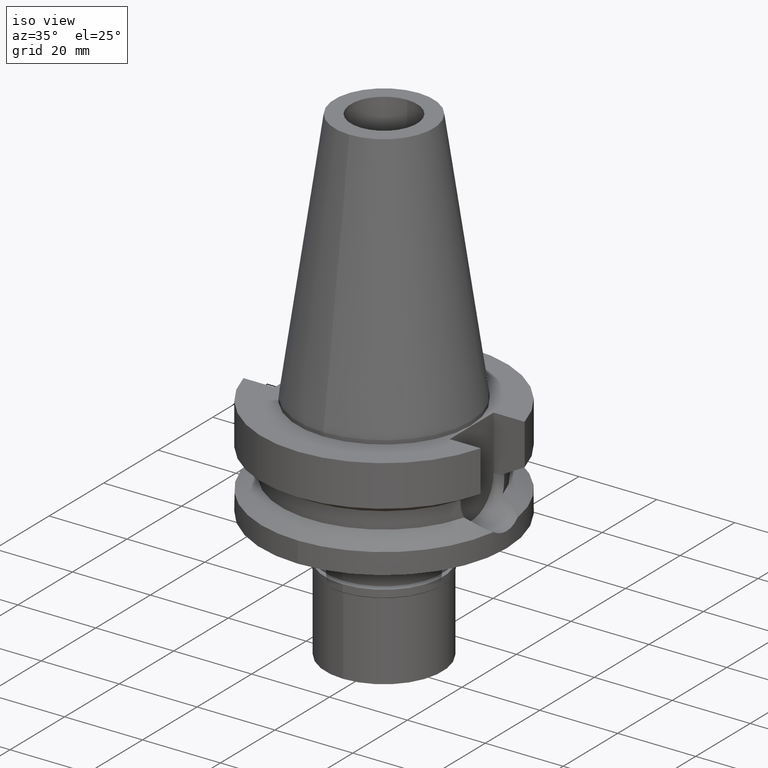
[diagram: clean part render]
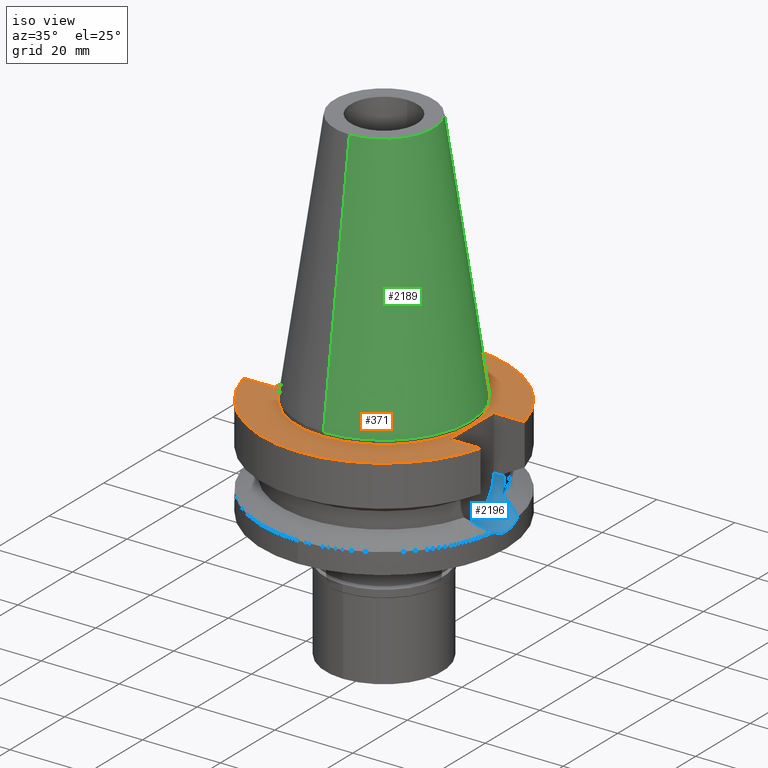
[diagram: same view with three faces highlighted in distinct colors, each labeled with its STEP entity id]
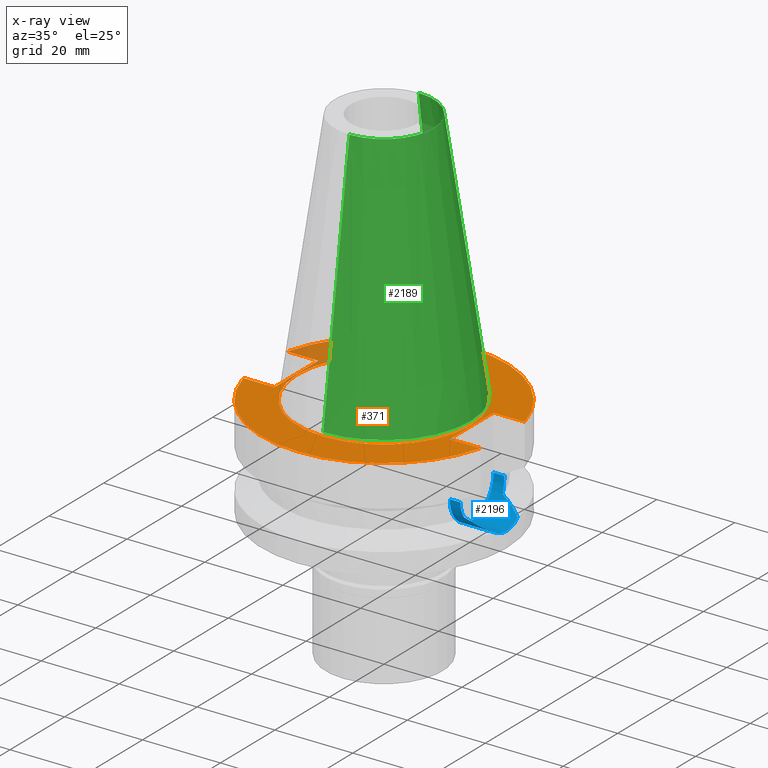
[diagram: x-ray of the same camera — body ghosted, the three highlighted faces saturated]
A machine part, iso view with three faces highlighted in distinct colors.
The next image is the same camera in x-ray (body ghosted, the three faces saturated) — at least one of them is partly hidden behind the body in this view.
Their STEP definitions:

[orange] entity #371 — the highlighted planar face has unit normal (0, 0, -1).
#106 = CIRCLE ( 'NONE', #2302, 22.22500000000000142 ) ;
#173 = CARTESIAN_POINT ( 'NONE',  ( 0.0000000000000000000, 2.098248593318999714E-14, -1.000000000000000000 ) ) ;
#199 = DIRECTION ( 'NONE',  ( 0.0000000000000000000, 0.0000000000000000000, -1.000000000000000000 ) ) ;
#203 = CARTESIAN_POINT ( 'NONE',  ( 22.50000000000000000, 8.050000000000000711, -1.000000000000000000 ) ) ;
#235 = CARTESIAN_POINT ( 'NONE',  ( -22.50000000000000000, -8.050000000000000711, -1.000000000000000000 ) ) ;
#239 = VERTEX_POINT ( 'NONE', #1117 ) ;
#254 = VECTOR ( 'NONE', #2682, 1000.000000000000000 ) ;
#255 = CIRCLE ( 'NONE', #1535, 31.50000000000000000 ) ;
#348 = ORIENTED_EDGE ( 'NONE', *, *, #2637, .T. ) ;
#371 = ADVANCED_FACE ( 'NONE', ( #2832, #2631 ), #493, .F. ) ;
#449 = CARTESIAN_POINT ( 'NONE',  ( -22.50000000000000000, 8.050000000000000711, -1.000000000000000000 ) ) ;
#479 = LINE ( 'NONE', #1626, #3044 ) ;
#493 = PLANE ( 'NONE',  #1995 ) ;
#527 = EDGE_CURVE ( 'NONE', #2763, #2972, #255, .T. ) ;
#543 = CARTESIAN_POINT ( 'NONE',  ( -30.45402272279000044, -8.050000000000000711, -1.000000000000000000 ) ) ;
#606 = ORIENTED_EDGE ( 'NONE', *, *, #2249, .F. ) ;
#621 = EDGE_CURVE ( 'NONE', #745, #2010, #106, .T. ) ;
#647 = CARTESIAN_POINT ( 'NONE',  ( -22.50000000000000000, -8.050000000000000711, -1.000000000000000000 ) ) ;
#669 = DIRECTION ( 'NONE',  ( 1.000000000000000000, -3.506251283225999947E-14, 0.0000000000000000000 ) ) ;
#706 = ORIENTED_EDGE ( 'NONE', *, *, #1483, .F. ) ;
#745 = VERTEX_POINT ( 'NONE', #2022 ) ;
#765 = LINE ( 'NONE', #1720, #254 ) ;
#766 = EDGE_LOOP ( 'NONE', ( #3021, #2660, #2078, #1828, #348, #706, #606, #2191 ) ) ;
#782 = ORIENTED_EDGE ( 'NONE', *, *, #1931, .F. ) ;
#784 = EDGE_CURVE ( 'NONE', #1574, #2763, #479, .T. ) ;
#864 = VERTEX_POINT ( 'NONE', #449 ) ;
#900 = CARTESIAN_POINT ( 'NONE',  ( 22.50000000000000000, 8.050000000000000711, -1.000000000000000000 ) ) ;
#953 = CARTESIAN_POINT ( 'NONE',  ( 0.0000000000000000000, 22.22500000000000142, -1.000000000000000000 ) ) ;
#1023 = CARTESIAN_POINT ( 'NONE',  ( 22.50000000000000000, -8.050000000000000711, -1.000000000000000000 ) ) ;
#1034 = CARTESIAN_POINT ( 'NONE',  ( -30.45402272279000044, 8.050000000000000711, -1.000000000000000000 ) ) ;
#1050 = VECTOR ( 'NONE', #2663, 1000.000000000000000 ) ;
#1084 = EDGE_CURVE ( 'NONE', #1419, #1574, #1701, .T. ) ;
#1088 = DIRECTION ( 'NONE',  ( 0.0000000000000000000, -1.000000000000000000, 0.0000000000000000000 ) ) ;
#1117 = CARTESIAN_POINT ( 'NONE',  ( 30.45402272279000044, 8.050000000000000711, -1.000000000000000000 ) ) ;
#1211 = DIRECTION ( 'NONE',  ( 0.0000000000000000000, 1.000000000000000000, 0.0000000000000000000 ) ) ;
#1369 = EDGE_CURVE ( 'NONE', #1371, #864, #1849, .T. ) ;
#1371 = VERTEX_POINT ( 'NONE', #1892 ) ;
#1419 = VERTEX_POINT ( 'NONE', #203 ) ;
#1421 = DIRECTION ( 'NONE',  ( 0.0000000000000000000, 1.000000000000000000, 0.0000000000000000000 ) ) ;
#1470 = CARTESIAN_POINT ( 'NONE',  ( 0.0000000000000000000, 2.098248593318999714E-14, -1.000000000000000000 ) ) ;
#1481 = DIRECTION ( 'NONE',  ( 0.0000000000000000000, 0.0000000000000000000, 1.000000000000000000 ) ) ;
#1483 = EDGE_CURVE ( 'NONE', #1666, #239, #1853, .T. ) ;
#1535 = AXIS2_PLACEMENT_3D ( 'NONE', #1470, #2892, #2935 ) ;
#1574 = VERTEX_POINT ( 'NONE', #1023 ) ;
#1626 = CARTESIAN_POINT ( 'NONE',  ( 22.50000000000000000, -8.050000000000000711, -1.000000000000000000 ) ) ;
#1646 = EDGE_LOOP ( 'NONE', ( #782, #2040 ) ) ;
#1666 = VERTEX_POINT ( 'NONE', #1034 ) ;
#1701 = LINE ( 'NONE', #2905, #1050 ) ;
#1710 = DIRECTION ( 'NONE',  ( -1.000000000000000000, 3.550916904668000126E-14, 0.0000000000000000000 ) ) ;
#1720 = CARTESIAN_POINT ( 'NONE',  ( -22.50000000000000000, 8.050000000000000711, -1.000000000000000000 ) ) ;
#1828 = ORIENTED_EDGE ( 'NONE', *, *, #1084, .F. ) ;
#1849 = LINE ( 'NONE', #647, #2799 ) ;
#1853 = CIRCLE ( 'NONE', #2403, 31.50000000000000000 ) ;
#1859 = DIRECTION ( 'NONE',  ( 0.0000000000000000000, -1.000000000000000000, 0.0000000000000000000 ) ) ;
#1892 = CARTESIAN_POINT ( 'NONE',  ( -22.50000000000000000, -8.050000000000000711, -1.000000000000000000 ) ) ;
#1931 = EDGE_CURVE ( 'NONE', #2010, #745, #2159, .T. ) ;
#1956 = DIRECTION ( 'NONE',  ( 0.0000000000000000000, 0.0000000000000000000, -1.000000000000000000 ) ) ;
#1995 = AXIS2_PLACEMENT_3D ( 'NONE', #2338, #199, #1859 ) ;
#2010 = VERTEX_POINT ( 'NONE', #953 ) ;
#2022 = CARTESIAN_POINT ( 'NONE',  ( 0.0000000000000000000, -22.22500000000000142, -1.000000000000000000 ) ) ;
#2040 = ORIENTED_EDGE ( 'NONE', *, *, #621, .F. ) ;
#2078 = ORIENTED_EDGE ( 'NONE', *, *, #784, .F. ) ;
#2139 = DIRECTION ( 'NONE',  ( 0.0000000000000000000, 1.000000000000000000, 0.0000000000000000000 ) ) ;
#2159 = CIRCLE ( 'NONE', #2553, 22.22500000000000142 ) ;
#2191 = ORIENTED_EDGE ( 'NONE', *, *, #1369, .F. ) ;
#2197 = VECTOR ( 'NONE', #1710, 1000.000000000000000 ) ;
#2249 = EDGE_CURVE ( 'NONE', #864, #1666, #765, .T. ) ;
#2302 = AXIS2_PLACEMENT_3D ( 'NONE', #2680, #1481, #1088 ) ;
#2338 = CARTESIAN_POINT ( 'NONE',  ( 0.0000000000000000000, 1.212400331155999925E-14, -1.000000000000000000 ) ) ;
#2376 = DIRECTION ( 'NONE',  ( 0.0000000000000000000, 0.0000000000000000000, 1.000000000000000000 ) ) ;
#2394 = CARTESIAN_POINT ( 'NONE',  ( 0.0000000000000000000, 2.098248593318999714E-14, -1.000000000000000000 ) ) ;
#2403 = AXIS2_PLACEMENT_3D ( 'NONE', #2394, #1956, #1211 ) ;
#2553 = AXIS2_PLACEMENT_3D ( 'NONE', #173, #2376, #2139 ) ;
#2565 = LINE ( 'NONE', #900, #3043 ) ;
#2623 = CARTESIAN_POINT ( 'NONE',  ( 30.45402272279000044, -8.050000000000000711, -1.000000000000000000 ) ) ;
#2631 = FACE_BOUND ( 'NONE', #1646, .T. ) ;
#2637 = EDGE_CURVE ( 'NONE', #1419, #239, #2565, .T. ) ;
#2660 = ORIENTED_EDGE ( 'NONE', *, *, #527, .F. ) ;
#2663 = DIRECTION ( 'NONE',  ( 0.0000000000000000000, -1.000000000000000000, 0.0000000000000000000 ) ) ;
#2680 = CARTESIAN_POINT ( 'NONE',  ( 0.0000000000000000000, 2.098248593318999714E-14, -1.000000000000000000 ) ) ;
#2682 = DIRECTION ( 'NONE',  ( -1.000000000000000000, -3.550916904668000126E-14, 0.0000000000000000000 ) ) ;
#2763 = VERTEX_POINT ( 'NONE', #2623 ) ;
#2777 = EDGE_CURVE ( 'NONE', #1371, #2972, #2899, .T. ) ;
#2785 = DIRECTION ( 'NONE',  ( 1.000000000000000000, 3.573249715389999860E-14, 0.0000000000000000000 ) ) ;
#2799 = VECTOR ( 'NONE', #1421, 1000.000000000000000 ) ;
#2832 = FACE_OUTER_BOUND ( 'NONE', #766, .T. ) ;
#2892 = DIRECTION ( 'NONE',  ( 0.0000000000000000000, 0.0000000000000000000, -1.000000000000000000 ) ) ;
#2899 = LINE ( 'NONE', #235, #2197 ) ;
#2905 = CARTESIAN_POINT ( 'NONE',  ( 22.50000000000000000, 8.050000000000000711, -1.000000000000000000 ) ) ;
#2935 = DIRECTION ( 'NONE',  ( 0.0000000000000000000, -1.000000000000000000, 0.0000000000000000000 ) ) ;
#2972 = VERTEX_POINT ( 'NONE', #543 ) ;
#3021 = ORIENTED_EDGE ( 'NONE', *, *, #2777, .T. ) ;
#3043 = VECTOR ( 'NONE', #669, 1000.000000000000000 ) ;
#3044 = VECTOR ( 'NONE', #2785, 1000.000000000000000 ) ;

[blue] entity #2196 — the highlighted cylindrical surface (partial cylindrical patch) has radius 8.05 mm, axis along (1, 0, 0).
#3 = CARTESIAN_POINT ( 'NONE',  ( 31.42566608920675009, 2.161912855910136599, -22.70455434715237786 ) ) ;
#23 = AXIS2_PLACEMENT_3D ( 'NONE', #2183, #68, #2706 ) ;
#44 = CARTESIAN_POINT ( 'NONE',  ( 25.24772266958000344, -8.050000000000000711, -14.94999999999999929 ) ) ;
#47 = CARTESIAN_POINT ( 'NONE',  ( 26.17362010216924872, -6.921423633064286207, -19.07750117106188625 ) ) ;
#68 = DIRECTION ( 'NONE',  ( 1.000000000000000000, 0.0000000000000000000, 0.0000000000000000000 ) ) ;
#114 = ORIENTED_EDGE ( 'NONE', *, *, #1655, .F. ) ;
#128 = CARTESIAN_POINT ( 'NONE',  ( 27.92404568082185179, 6.323456278402608710, -19.97420482294344168 ) ) ;
#148 = CARTESIAN_POINT ( 'NONE',  ( 31.27812972761145360, -3.746556030148608496, -22.08615384555778505 ) ) ;
#152 = CARTESIAN_POINT ( 'NONE',  ( 25.24772266958000344, -8.050000000000000711, -14.94999999999999929 ) ) ;
#157 = CARTESIAN_POINT ( 'NONE',  ( 28.88662173957530399, 5.863387539855740016, -20.46575949448729759 ) ) ;
#183 = CARTESIAN_POINT ( 'NONE',  ( 31.33673721239597398, -3.204096010012915663, -22.33755624054715838 ) ) ;
#188 = CARTESIAN_POINT ( 'NONE',  ( 25.32119310062651252, -7.816055872883342914, -16.87669021871291264 ) ) ;
#195 = CARTESIAN_POINT ( 'NONE',  ( 31.50000000000000000, -0.7651554269413264331, -23.00000000000000355 ) ) ;
#238 = CARTESIAN_POINT ( 'NONE',  ( 31.43710641057978350, 1.991379779744103296, -22.75094280097368227 ) ) ;
#264 = CARTESIAN_POINT ( 'NONE',  ( 27.86935078598209259, -6.314241967438078085, -19.94614511782477706 ) ) ;
#281 = CYLINDRICAL_SURFACE ( 'NONE', #23, 8.050000000000000711 ) ;
#333 = CARTESIAN_POINT ( 'NONE',  ( 25.24772266958000344, -8.050000000000000711, -14.94999999999999929 ) ) ;
#355 = AXIS2_PLACEMENT_3D ( 'NONE', #2225, #2978, #2254 ) ;
#377 = CARTESIAN_POINT ( 'NONE',  ( 31.35452407078453163, -3.025350768324190476, -22.41224209224660413 ) ) ;
#388 = CARTESIAN_POINT ( 'NONE',  ( 31.23206219159662922, -4.116692003703872338, -21.88200209904533722 ) ) ;
#520 = CARTESIAN_POINT ( 'NONE',  ( 31.17899877608999759, 4.485536235554000051, -21.63449434733000132 ) ) ;
#551 = CARTESIAN_POINT ( 'NONE',  ( 28.73999818052374167, -5.932932131795376485, -20.39088562666294280 ) ) ;
#564 = CARTESIAN_POINT ( 'NONE',  ( 25.32841847211643937, 7.792621106460854818, -16.96938725878849041 ) ) ;
#578 = CARTESIAN_POINT ( 'NONE',  ( 25.33290093529253895, 7.778067760096087468, -17.02527487563960307 ) ) ;
#582 = B_SPLINE_CURVE_WITH_KNOTS ( 'NONE', 3,
 ( #152, #1147, #2288, #2100, #2085, #1096, #2046, #883, #2811, #1834, #188, #1135, #2793, #898 ),
 .UNSPECIFIED., .F., .F.,
 ( 4, 2, 2, 1, 1, 2, 2, 4 ),
 ( 0.0000000000000000000, 0.2499999999999965583, 0.3749999999999947820, 0.4374999999999925060, 0.4687499999999902300, 0.4843749999999901190, 0.4999999999999900080, 1.000000000000000000 ),
 .UNSPECIFIED. ) ;
#617 = DIRECTION ( 'NONE',  ( -1.000000000000000000, -1.551559937893000172E-14, 0.0000000000000000000 ) ) ;
#639 = ORIENTED_EDGE ( 'NONE', *, *, #918, .T. ) ;
#640 = CARTESIAN_POINT ( 'NONE',  ( 31.41252693101176519, -2.344406219108712719, -22.65106619706786262 ) ) ;
#697 = CARTESIAN_POINT ( 'NONE',  ( 31.50000000000000000, 0.3825415463719509246, -23.00000000000000355 ) ) ;
#704 = VERTEX_POINT ( 'NONE', #1526 ) ;
#716 = CARTESIAN_POINT ( 'NONE',  ( 31.41965005813987588, 2.247072451102948953, -22.68008986002388738 ) ) ;
#739 = CARTESIAN_POINT ( 'NONE',  ( 28.65094770388293455, -5.974527729168616297, -20.34541304341658119 ) ) ;
#787 = CARTESIAN_POINT ( 'NONE',  ( 28.79902309038331865, -5.905149557627960455, -20.42102630088392701 ) ) ;
#796 = CARTESIAN_POINT ( 'NONE',  ( 25.27268413421364812, 7.973316252974504970, -16.24513481739792908 ) ) ;
#797 = CARTESIAN_POINT ( 'NONE',  ( 25.24772266958000344, 8.050000000000000711, -14.94999999999999929 ) ) ;
#824 = CARTESIAN_POINT ( 'NONE',  ( 29.05318931980192687, 5.782394212794814692, -20.55081441876465576 ) ) ;
#869 = VERTEX_POINT ( 'NONE', #2122 ) ;
#883 = CARTESIAN_POINT ( 'NONE',  ( 25.31203562611612412, -7.845693926019265518, -16.75295273491150283 ) ) ;
#892 = VERTEX_POINT ( 'NONE', #2111 ) ;
#898 = CARTESIAN_POINT ( 'NONE',  ( 25.53175183775000079, -7.097862220092999941, -18.74774300138999905 ) ) ;
#904 = CARTESIAN_POINT ( 'NONE',  ( 31.17899877608999759, 4.485536235554000051, -21.63449434733000132 ) ) ;
#918 = EDGE_CURVE ( 'NONE', #2895, #892, #1469, .T. ) ;
#961 = EDGE_CURVE ( 'NONE', #2962, #2620, #1823, .T. ) ;
#995 = FACE_OUTER_BOUND ( 'NONE', #2295, .T. ) ;
#1021 = CARTESIAN_POINT ( 'NONE',  ( 31.50000000000000000, 0.0000000000000000000, -23.00000000000000000 ) ) ;
#1031 = CARTESIAN_POINT ( 'NONE',  ( 25.44391113295673534, 7.408299074736797607, -18.11696246892093853 ) ) ;
#1070 = LINE ( 'NONE', #333, #1693 ) ;
#1081 = CARTESIAN_POINT ( 'NONE',  ( 25.53175183775000079, -7.097862220092999941, -18.74774300138999905 ) ) ;
#1085 = EDGE_CURVE ( 'NONE', #892, #869, #1922, .T. ) ;
#1096 = CARTESIAN_POINT ( 'NONE',  ( 25.29453118987922622, -7.902064242035173436, -16.48842005645968101 ) ) ;
#1105 = CARTESIAN_POINT ( 'NONE',  ( 28.96968018557576485, 5.823195326908508385, -20.50817272116828249 ) ) ;
#1110 = ORIENTED_EDGE ( 'NONE', *, *, #2569, .T. ) ;
#1130 = CARTESIAN_POINT ( 'NONE',  ( 31.50000000000000000, 0.0000000000000000000, -23.00000000000000000 ) ) ;
#1135 = CARTESIAN_POINT ( 'NONE',  ( 25.36815874789045822, -7.663791245671274233, -17.48814129372907189 ) ) ;
#1139 = CARTESIAN_POINT ( 'NONE',  ( 31.41422043550593557, 2.321593114297240579, -22.65797165830771576 ) ) ;
#1147 = CARTESIAN_POINT ( 'NONE',  ( 25.24772266958000344, -8.050000000000000711, -15.26994624113885557 ) ) ;
#1207 = CIRCLE ( 'NONE', #355, 8.050000000000000711 ) ;
#1223 = CARTESIAN_POINT ( 'NONE',  ( 22.50000000000000000, 8.050000000000000711, -14.94999999999999929 ) ) ;
#1260 = CARTESIAN_POINT ( 'NONE',  ( 28.82932214185278497, -5.890774473694308178, -20.43649847364699212 ) ) ;
#1283 = CARTESIAN_POINT ( 'NONE',  ( 25.24772266958000344, 8.050000000000000711, -14.94999999999999929 ) ) ;
#1337 = CARTESIAN_POINT ( 'NONE',  ( 31.37858090355793905, -2.761758643384220502, -22.51201132466532329 ) ) ;
#1376 = ORIENTED_EDGE ( 'NONE', *, *, #3058, .T. ) ;
#1382 = CARTESIAN_POINT ( 'NONE',  ( 31.46212859131685491, 1.551903289493235860, -22.85152805513951435 ) ) ;
#1438 = CARTESIAN_POINT ( 'NONE',  ( 26.77170282193231898, -6.727659071125545509, -19.38438364428035854 ) ) ;
#1445 = VERTEX_POINT ( 'NONE', #44 ) ;
#1466 = CARTESIAN_POINT ( 'NONE',  ( 29.92152120124286085, 5.319443134748142121, -20.99394787880276425 ) ) ;
#1469 = B_SPLINE_CURVE_WITH_KNOTS ( 'NONE', 3,
 ( #2134, #697, #2601, #2804, #1382, #2570, #238, #3, #716, #2616, #2384, #1139, #2555, #3035, #904 ),
 .UNSPECIFIED., .F., .F.,
 ( 4, 2, 2, 1, 1, 1, 2, 2, 4 ),
 ( 0.0000000000000000000, 0.2500000000000113243, 0.3750000000000170974, 0.4375000000000200950, 0.4687500000000218159, 0.4843750000000223155, 0.4921875000000220379, 0.5000000000000216493, 1.000000000000000000 ),
 .UNSPECIFIED. ) ;
#1489 = CARTESIAN_POINT ( 'NONE',  ( 25.53175183775000079, 7.097862220092999941, -18.74774300138999905 ) ) ;
#1499 = CARTESIAN_POINT ( 'NONE',  ( 28.25223450882015186, -6.152642639508036027, -20.14178610556500004 ) ) ;
#1507 = CARTESIAN_POINT ( 'NONE',  ( 25.24772266958000344, 8.050000000000000711, -15.58988314849633561 ) ) ;
#1526 = CARTESIAN_POINT ( 'NONE',  ( 22.50000000000000000, -8.050000000000000711, -14.94999999999999929 ) ) ;
#1573 = ORIENTED_EDGE ( 'NONE', *, *, #961, .T. ) ;
#1579 = B_SPLINE_CURVE_WITH_KNOTS ( 'NONE', 3,
 ( #2009, #388, #148, #183, #377, #1337, #2787, #2064, #2974, #1841, #2959, #640, #1596, #195, #1130 ),
 .UNSPECIFIED., .F., .F.,
 ( 4, 2, 2, 1, 1, 1, 2, 2, 4 ),
 ( 0.0000000000000000000, 0.2499999999999946154, 0.3749999999999918954, 0.4374999999999906186, 0.4687499999999897304, 0.4843749999999891198, 0.4921874999999893419, 0.4999999999999895639, 1.000000000000000000 ),
 .UNSPECIFIED. ) ;
#1596 = CARTESIAN_POINT ( 'NONE',  ( 31.47114290507602874, -1.554796663238372956, -22.89008434575701756 ) ) ;
#1655 = EDGE_CURVE ( 'NONE', #1445, #704, #1070, .T. ) ;
#1676 = ORIENTED_EDGE ( 'NONE', *, *, #2824, .F. ) ;
#1692 = CARTESIAN_POINT ( 'NONE',  ( 31.17899877608999759, -4.485536235554000051, -21.63449434733000132 ) ) ;
#1693 = VECTOR ( 'NONE', #617, 1000.000000000000000 ) ;
#1715 = CARTESIAN_POINT ( 'NONE',  ( 30.53416407352858641, -4.974752106134261886, -21.30621289469481283 ) ) ;
#1730 = CARTESIAN_POINT ( 'NONE',  ( 30.50190770324087453, 4.970159521104144495, -21.28980593053070436 ) ) ;
#1758 = CARTESIAN_POINT ( 'NONE',  ( 25.48481052201388408, 7.266715036218282187, -18.43216239893522257 ) ) ;
#1768 = CARTESIAN_POINT ( 'NONE',  ( 28.91375545651745682, 5.850319755256450982, -20.47961540931414959 ) ) ;
#1782 = CARTESIAN_POINT ( 'NONE',  ( 25.53175183775000079, 7.097862220092999941, -18.74774300138999905 ) ) ;
#1804 = CARTESIAN_POINT ( 'NONE',  ( 26.81547870403921152, 6.744987702098485194, -19.40725437663970254 ) ) ;
#1823 = B_SPLINE_CURVE_WITH_KNOTS ( 'NONE', 3,
 ( #2425, #47, #1438, #2400, #264, #1499, #2167, #739, #551, #787, #1260, #1924, #1715, #2869 ),
 .UNSPECIFIED., .F., .F.,
 ( 4, 2, 2, 1, 1, 2, 2, 4 ),
 ( 0.0000000000000000000, 0.2499999999999944489, 0.3749999999999918954, 0.4374999999999908962, 0.4687499999999906741, 0.4843749999999905631, 0.4999999999999904521, 1.000000000000000000 ),
 .UNSPECIFIED. ) ;
#1834 = CARTESIAN_POINT ( 'NONE',  ( 25.31952011347645382, -7.821476031037780885, -16.85458648998988451 ) ) ;
#1841 = CARTESIAN_POINT ( 'NONE',  ( 31.41025956846787892, -2.374562832959483227, -22.64181864170944536 ) ) ;
#1922 = B_SPLINE_CURVE_WITH_KNOTS ( 'NONE', 3,
 ( #520, #1970, #1730, #1466, #2918, #2313, #2752, #824, #1105, #1768, #157, #128, #1804, #1782 ),
 .UNSPECIFIED., .F., .F.,
 ( 4, 2, 2, 1, 1, 2, 2, 4 ),
 ( 0.0000000000000000000, 0.2499999999999998335, 0.3749999999999998335, 0.4374999999999998890, 0.4687499999999999445, 0.4843750000000002220, 0.5000000000000005551, 1.000000000000000000 ),
 .UNSPECIFIED. ) ;
#1924 = CARTESIAN_POINT ( 'NONE',  ( 29.76034277762905944, -5.445783774188621251, -20.91193642822842236 ) ) ;
#1932 = CARTESIAN_POINT ( 'NONE',  ( 25.35409503809571774, 7.708922223049618161, -17.26977670179890723 ) ) ;
#1950 = CARTESIAN_POINT ( 'NONE',  ( 25.39162493938946952, 7.584889300339769491, -17.65175237885825510 ) ) ;
#1970 = CARTESIAN_POINT ( 'NONE',  ( 30.85657950574569597, 4.730145626779496126, -21.47035264402908439 ) ) ;
#2009 = CARTESIAN_POINT ( 'NONE',  ( 31.17899877608999759, -4.485536235554000051, -21.63449434733000132 ) ) ;
#2046 = CARTESIAN_POINT ( 'NONE',  ( 25.30213757442784583, -7.877637162950184013, -16.61056528410885491 ) ) ;
#2064 = CARTESIAN_POINT ( 'NONE',  ( 31.40207367289492879, -2.480881812470818737, -22.60840945406810576 ) ) ;
#2085 = CARTESIAN_POINT ( 'NONE',  ( 25.28048863378946010, -7.947021833619135833, -16.24412758159851577 ) ) ;
#2100 = CARTESIAN_POINT ( 'NONE',  ( 25.27268721373958371, -7.971796898669071041, -16.08126439280662012 ) ) ;
#2111 = CARTESIAN_POINT ( 'NONE',  ( 31.17899877608999759, 4.485536235554000051, -21.63449434733000132 ) ) ;
#2122 = CARTESIAN_POINT ( 'NONE',  ( 25.53175183775000079, 7.097862220092999941, -18.74774300138999905 ) ) ;
#2130 = LINE ( 'NONE', #1223, #2592 ) ;
#2134 = CARTESIAN_POINT ( 'NONE',  ( 31.50000000000000000, 0.0000000000000000000, -23.00000000000000000 ) ) ;
#2167 = CARTESIAN_POINT ( 'NONE',  ( 28.43957147542765540, -6.071011224089884806, -20.23747356393215924 ) ) ;
#2183 = CARTESIAN_POINT ( 'NONE',  ( 22.50000000000000000, 0.0000000000000000000, -14.94999999999999929 ) ) ;
#2196 = ADVANCED_FACE ( 'NONE', ( #995 ), #281, .F. ) ;
#2225 = CARTESIAN_POINT ( 'NONE',  ( 22.50000000000000000, 0.0000000000000000000, -14.94999999999999929 ) ) ;
#2254 = DIRECTION ( 'NONE',  ( 0.0000000000000000000, 0.0000000000000000000, -1.000000000000000000 ) ) ;
#2288 = CARTESIAN_POINT ( 'NONE',  ( 25.25396380561988963, -8.030903546310351970, -15.59366754625957263 ) ) ;
#2295 = EDGE_LOOP ( 'NONE', ( #2681, #1110, #1676, #2822, #114, #1376, #1573, #2476, #639 ) ) ;
#2306 = B_SPLINE_CURVE_WITH_KNOTS ( 'NONE', 3,
 ( #1489, #1758, #1031, #1950, #2709, #1932, #2698, #578, #564, #2876, #2924, #796, #1507, #1283 ),
 .UNSPECIFIED., .F., .F.,
 ( 4, 2, 2, 1, 1, 2, 2, 4 ),
 ( 0.0000000000000000000, 0.2500000000000008882, 0.3750000000000025535, 0.4375000000000021094, 0.4687500000000018874, 0.4843750000000029421, 0.5000000000000039968, 1.000000000000000000 ),
 .UNSPECIFIED. ) ;
#2313 = CARTESIAN_POINT ( 'NONE',  ( 29.40561325075064047, 5.602829467173738642, -20.73072883951815726 ) ) ;
#2336 = EDGE_CURVE ( 'NONE', #2620, #2895, #1579, .T. ) ;
#2384 = CARTESIAN_POINT ( 'NONE',  ( 31.41523313603342871, 2.307851765032669089, -22.66209965112653180 ) ) ;
#2400 = CARTESIAN_POINT ( 'NONE',  ( 27.60314858459268095, -6.419759491704638776, -19.81002590416532527 ) ) ;
#2425 = CARTESIAN_POINT ( 'NONE',  ( 25.53175183775000079, -7.097862220092999941, -18.74774300138999905 ) ) ;
#2476 = ORIENTED_EDGE ( 'NONE', *, *, #2336, .T. ) ;
#2482 = VERTEX_POINT ( 'NONE', #2805 ) ;
#2555 = CARTESIAN_POINT ( 'NONE',  ( 31.36328283755199919, 3.007832628915092954, -22.45025453262910986 ) ) ;
#2569 = EDGE_CURVE ( 'NONE', #869, #2853, #2306, .T. ) ;
#2570 = CARTESIAN_POINT ( 'NONE',  ( 31.44589798759550447, 1.844932280561417892, -22.78637270914717661 ) ) ;
#2592 = VECTOR ( 'NONE', #3063, 1000.000000000000000 ) ;
#2601 = CARTESIAN_POINT ( 'NONE',  ( 31.49278639834606608, 0.7710438196499757035, -22.97268655621895306 ) ) ;
#2616 = CARTESIAN_POINT ( 'NONE',  ( 31.41700835831545646, 2.283543664118167449, -22.66933216880426727 ) ) ;
#2620 = VERTEX_POINT ( 'NONE', #1692 ) ;
#2681 = ORIENTED_EDGE ( 'NONE', *, *, #1085, .T. ) ;
#2698 = CARTESIAN_POINT ( 'NONE',  ( 25.34385564283465797, 7.742426194080676893, -17.15634504640316749 ) ) ;
#2706 = DIRECTION ( 'NONE',  ( 0.0000000000000000000, 0.0000000000000000000, -1.000000000000000000 ) ) ;
#2709 = CARTESIAN_POINT ( 'NONE',  ( 25.37570668987012112, 7.637796999689727251, -17.49792859799481448 ) ) ;
#2752 = CARTESIAN_POINT ( 'NONE',  ( 29.24539825080089983, 5.686404886082226717, -20.64895039922000208 ) ) ;
#2787 = CARTESIAN_POINT ( 'NONE',  ( 31.38995345624229927, -2.631089804254001407, -22.55883194693764082 ) ) ;
#2793 = CARTESIAN_POINT ( 'NONE',  ( 25.43787059312088061, -7.435562863721282056, -18.11659112006256933 ) ) ;
#2804 = CARTESIAN_POINT ( 'NONE',  ( 31.47114559338426432, 1.356374570415840752, -22.88735630185001924 ) ) ;
#2805 = CARTESIAN_POINT ( 'NONE',  ( 22.50000000000000000, 8.050000000000000711, -14.94999999999999929 ) ) ;
#2811 = CARTESIAN_POINT ( 'NONE',  ( 25.31649706320713378, -7.831262302051475999, -16.81393877539418824 ) ) ;
#2822 = ORIENTED_EDGE ( 'NONE', *, *, #2914, .T. ) ;
#2824 = EDGE_CURVE ( 'NONE', #2482, #2853, #2130, .T. ) ;
#2853 = VERTEX_POINT ( 'NONE', #797 ) ;
#2869 = CARTESIAN_POINT ( 'NONE',  ( 31.17899877608999759, -4.485536235554000051, -21.63449434733000132 ) ) ;
#2876 = CARTESIAN_POINT ( 'NONE',  ( 25.32547736588454868, 7.802164859283096554, -16.93219376408675814 ) ) ;
#2895 = VERTEX_POINT ( 'NONE', #1021 ) ;
#2914 = EDGE_CURVE ( 'NONE', #2482, #704, #1207, .T. ) ;
#2918 = CARTESIAN_POINT ( 'NONE',  ( 29.71999590087004606, 5.434077834403014506, -20.89116098979985026 ) ) ;
#2924 = CARTESIAN_POINT ( 'NONE',  ( 25.32416715502053250, 7.806414197728631876, -16.91540975489061438 ) ) ;
#2959 = CARTESIAN_POINT ( 'NONE',  ( 31.41185438971834998, -2.353388662172788859, -22.64832348432943476 ) ) ;
#2962 = VERTEX_POINT ( 'NONE', #1081 ) ;
#2974 = CARTESIAN_POINT ( 'NONE',  ( 31.40784684085144107, -2.406367806376787488, -22.63197621435483597 ) ) ;
#2978 = DIRECTION ( 'NONE',  ( -1.000000000000000000, 0.0000000000000000000, 0.0000000000000000000 ) ) ;
#3035 = CARTESIAN_POINT ( 'NONE',  ( 31.28513683619772578, 3.747769718380133064, -22.12956222744666590 ) ) ;
#3058 = EDGE_CURVE ( 'NONE', #1445, #2962, #582, .T. ) ;
#3063 = DIRECTION ( 'NONE',  ( 1.000000000000000000, -1.551559937893000172E-14, 0.0000000000000000000 ) ) ;

[green] entity #2189 — the highlighted conical surface has half-angle 8.297 deg.
#51 = DIRECTION ( 'NONE',  ( 0.0000000000000000000, -1.000000000000000000, 0.0000000000000000000 ) ) ;
#100 = DIRECTION ( 'NONE',  ( 0.0000000000000000000, 0.1443043893539925626, -0.9895333461855498891 ) ) ;
#132 = VERTEX_POINT ( 'NONE', #1375 ) ;
#164 = ORIENTED_EDGE ( 'NONE', *, *, #179, .T. ) ;
#179 = EDGE_CURVE ( 'NONE', #132, #386, #2496, .T. ) ;
#257 = AXIS2_PLACEMENT_3D ( 'NONE', #3010, #1327, #842 ) ;
#361 = ORIENTED_EDGE ( 'NONE', *, *, #2486, .T. ) ;
#386 = VERTEX_POINT ( 'NONE', #1914 ) ;
#404 = AXIS2_PLACEMENT_3D ( 'NONE', #2420, #1039, #51 ) ;
#513 = LINE ( 'NONE', #1019, #1739 ) ;
#774 = CARTESIAN_POINT ( 'NONE',  ( 0.0000000000000000000, 12.68766899429999917, 65.40000000000000568 ) ) ;
#842 = DIRECTION ( 'NONE',  ( 0.0000000000000000000, 1.000000000000000000, 0.0000000000000000000 ) ) ;
#955 = CIRCLE ( 'NONE', #257, 22.22500000000000142 ) ;
#1019 = CARTESIAN_POINT ( 'NONE',  ( 0.0000000000000000000, 12.68766899429999917, 65.40000000000000568 ) ) ;
#1039 = DIRECTION ( 'NONE',  ( 0.0000000000000000000, 0.0000000000000000000, -1.000000000000000000 ) ) ;
#1040 = ORIENTED_EDGE ( 'NONE', *, *, #2307, .F. ) ;
#1082 = VERTEX_POINT ( 'NONE', #774 ) ;
#1140 = DIRECTION ( 'NONE',  ( 0.0000000000000000000, 1.000000000000000000, 0.0000000000000000000 ) ) ;
#1327 = DIRECTION ( 'NONE',  ( 0.0000000000000000000, 0.0000000000000000000, -1.000000000000000000 ) ) ;
#1338 = EDGE_LOOP ( 'NONE', ( #361, #164, #1040, #1721 ) ) ;
#1375 = CARTESIAN_POINT ( 'NONE',  ( 0.0000000000000000000, -12.68766899429999917, 65.40000000000000568 ) ) ;
#1383 = CARTESIAN_POINT ( 'NONE',  ( 0.0000000000000000000, 1.625106302469000024E-14, 65.40000000000000568 ) ) ;
#1536 = AXIS2_PLACEMENT_3D ( 'NONE', #1383, #2346, #1140 ) ;
#1551 = DIRECTION ( 'NONE',  ( 0.0000000000000000000, -0.1443043893539925626, -0.9895333461855498891 ) ) ;
#1680 = VECTOR ( 'NONE', #1551, 1000.000000000000114 ) ;
#1721 = ORIENTED_EDGE ( 'NONE', *, *, #2584, .F. ) ;
#1739 = VECTOR ( 'NONE', #100, 1000.000000000000114 ) ;
#1914 = CARTESIAN_POINT ( 'NONE',  ( 0.0000000000000000000, -22.22500000000000142, 2.842170943039999687E-14 ) ) ;
#2189 = ADVANCED_FACE ( 'NONE', ( #2652 ), #2314, .T. ) ;
#2299 = CARTESIAN_POINT ( 'NONE',  ( 0.0000000000000000000, -12.68766899429999917, 65.40000000000000568 ) ) ;
#2307 = EDGE_CURVE ( 'NONE', #2863, #386, #955, .T. ) ;
#2314 = CONICAL_SURFACE ( 'NONE', #404, 17.45633449714999941, 0.1448099680379422438 ) ;
#2346 = DIRECTION ( 'NONE',  ( 0.0000000000000000000, 0.0000000000000000000, -1.000000000000000000 ) ) ;
#2420 = CARTESIAN_POINT ( 'NONE',  ( 0.0000000000000000000, 1.625106302469000024E-14, 32.70000000000000284 ) ) ;
#2433 = CARTESIAN_POINT ( 'NONE',  ( 0.0000000000000000000, 22.22500000000000142, 2.842170943039999687E-14 ) ) ;
#2486 = EDGE_CURVE ( 'NONE', #1082, #132, #2643, .T. ) ;
#2496 = LINE ( 'NONE', #2299, #1680 ) ;
#2584 = EDGE_CURVE ( 'NONE', #1082, #2863, #513, .T. ) ;
#2643 = CIRCLE ( 'NONE', #1536, 12.68766899429999917 ) ;
#2652 = FACE_OUTER_BOUND ( 'NONE', #1338, .T. ) ;
#2863 = VERTEX_POINT ( 'NONE', #2433 ) ;
#3010 = CARTESIAN_POINT ( 'NONE',  ( 0.0000000000000000000, 1.625106302469000024E-14, 2.842170943039999687E-14 ) ) ;